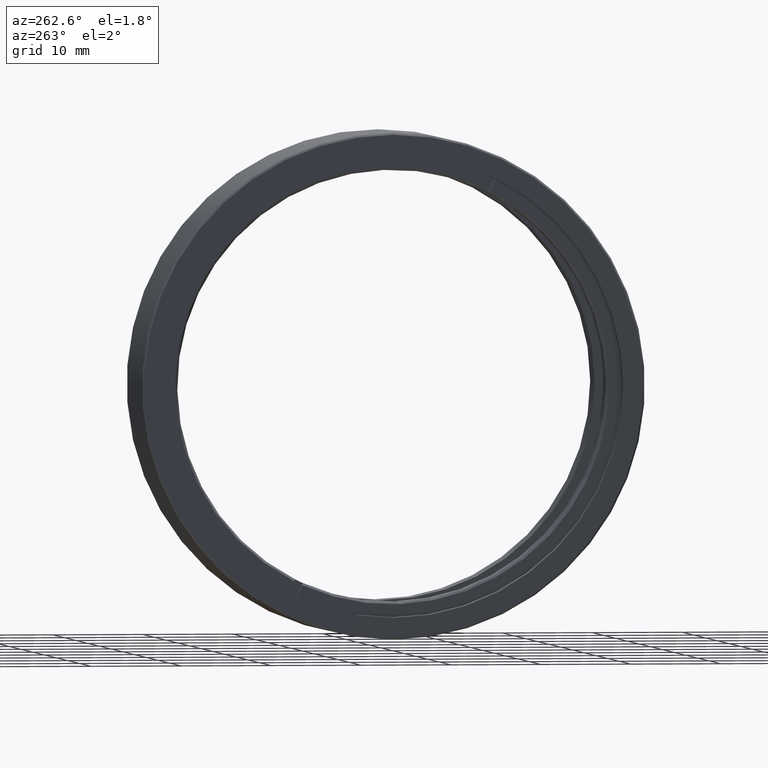
[diagram: clean part render]
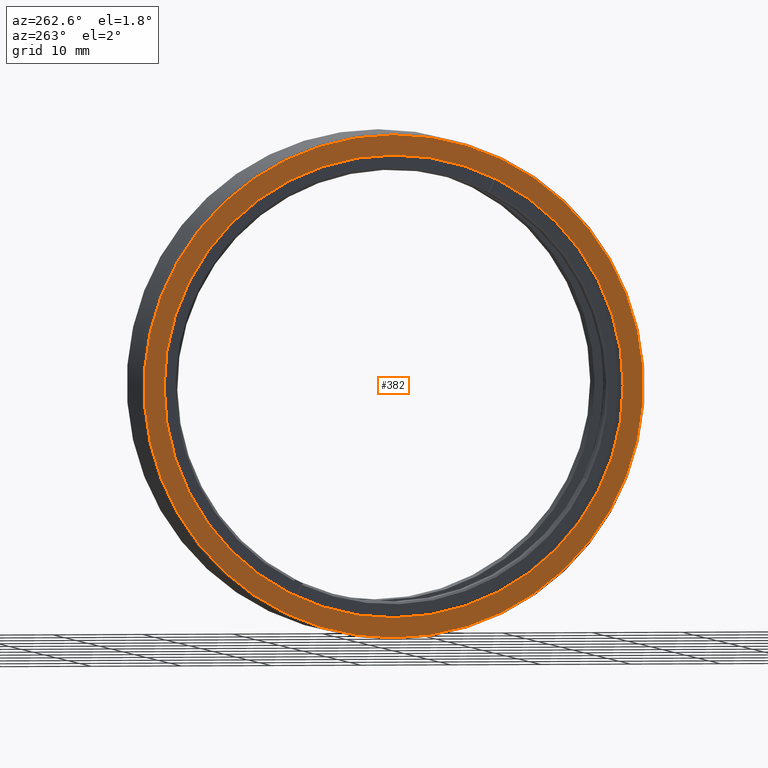
[diagram: same view with one face highlighted and labeled with its STEP entity id]
A machine part, auxiliary view. The second image highlights one B-rep face of the part: STEP entity #382.
In plain terms, the highlighted planar face has unit normal (-1, 0, 0).
Its self-contained STEP definition (entity closure, byte-faithful):
#32 = ORIENTED_EDGE ( 'NONE', *, *, #1016, .T. ) ;
#181 = EDGE_CURVE ( 'NONE', #1378, #1564, #386, .T. ) ;
#236 = CARTESIAN_POINT ( 'NONE',  ( -9.974000000000017963, -20.10857142857141966, 0.000000000000000000 ) ) ;
#287 = VERTEX_POINT ( 'NONE', #307 ) ;
#307 = CARTESIAN_POINT ( 'NONE',  ( -9.974000000000017963, -20.10857142857141611, 25.52499999999999858 ) ) ;
#335 = CIRCLE ( 'NONE', #935, 25.52499999999999858 ) ;
#339 = DIRECTION ( 'NONE',  ( 0.000000000000000000, 0.000000000000000000, 1.000000000000000000 ) ) ;
#382 = ADVANCED_FACE ( 'NONE', ( #757, #1413 ), #602, .T. ) ;
#386 = CIRCLE ( 'NONE', #1367, 27.74999999999999289 ) ;
#415 = CARTESIAN_POINT ( 'NONE',  ( -9.974000000000017963, -20.10857142857141966, -25.52499999999999858 ) ) ;
#506 = ORIENTED_EDGE ( 'NONE', *, *, #181, .T. ) ;
#530 = CARTESIAN_POINT ( 'NONE',  ( -9.974000000000017963, -20.10857142857141966, -27.74999999999999289 ) ) ;
#598 = CARTESIAN_POINT ( 'NONE',  ( -9.974000000000017963, -20.10857142857141966, 0.000000000000000000 ) ) ;
#602 = PLANE ( 'NONE',  #634 ) ;
#634 = AXIS2_PLACEMENT_3D ( 'NONE', #598, #1509, #339 ) ;
#654 = EDGE_CURVE ( 'NONE', #287, #1149, #335, .T. ) ;
#659 = CARTESIAN_POINT ( 'NONE',  ( -9.974000000000017963, -20.10857142857141966, 0.000000000000000000 ) ) ;
#744 = DIRECTION ( 'NONE',  ( -1.000000000000000000, 0.000000000000000000, 0.000000000000000000 ) ) ;
#757 = FACE_OUTER_BOUND ( 'NONE', #1062, .T. ) ;
#761 = ORIENTED_EDGE ( 'NONE', *, *, #654, .F. ) ;
#775 = CIRCLE ( 'NONE', #1120, 25.52499999999999858 ) ;
#788 = EDGE_LOOP ( 'NONE', ( #1424, #761 ) ) ;
#798 = CIRCLE ( 'NONE', #1386, 27.74999999999999289 ) ;
#800 = DIRECTION ( 'NONE',  ( -1.000000000000000000, 0.000000000000000000, 0.000000000000000000 ) ) ;
#875 = DIRECTION ( 'NONE',  ( 0.000000000000000000, 0.000000000000000000, 1.000000000000000000 ) ) ;
#935 = AXIS2_PLACEMENT_3D ( 'NONE', #1579, #1041, #1319 ) ;
#986 = DIRECTION ( 'NONE',  ( -1.000000000000000000, 0.000000000000000000, 0.000000000000000000 ) ) ;
#1005 = CARTESIAN_POINT ( 'NONE',  ( -9.974000000000017963, -20.10857142857141966, 0.000000000000000000 ) ) ;
#1007 = EDGE_CURVE ( 'NONE', #1149, #287, #775, .T. ) ;
#1016 = EDGE_CURVE ( 'NONE', #1564, #1378, #798, .T. ) ;
#1041 = DIRECTION ( 'NONE',  ( -1.000000000000000000, 0.000000000000000000, 0.000000000000000000 ) ) ;
#1050 = DIRECTION ( 'NONE',  ( 0.000000000000000000, 0.000000000000000000, 1.000000000000000000 ) ) ;
#1062 = EDGE_LOOP ( 'NONE', ( #32, #506 ) ) ;
#1120 = AXIS2_PLACEMENT_3D ( 'NONE', #236, #744, #875 ) ;
#1149 = VERTEX_POINT ( 'NONE', #415 ) ;
#1264 = DIRECTION ( 'NONE',  ( 0.000000000000000000, 0.000000000000000000, 1.000000000000000000 ) ) ;
#1319 = DIRECTION ( 'NONE',  ( 0.000000000000000000, 0.000000000000000000, 1.000000000000000000 ) ) ;
#1367 = AXIS2_PLACEMENT_3D ( 'NONE', #659, #800, #1050 ) ;
#1378 = VERTEX_POINT ( 'NONE', #1535 ) ;
#1386 = AXIS2_PLACEMENT_3D ( 'NONE', #1005, #986, #1264 ) ;
#1413 = FACE_BOUND ( 'NONE', #788, .T. ) ;
#1424 = ORIENTED_EDGE ( 'NONE', *, *, #1007, .F. ) ;
#1509 = DIRECTION ( 'NONE',  ( -1.000000000000000000, 0.000000000000000000, 0.000000000000000000 ) ) ;
#1535 = CARTESIAN_POINT ( 'NONE',  ( -9.974000000000017963, -20.10857142857141611, 27.74999999999999289 ) ) ;
#1564 = VERTEX_POINT ( 'NONE', #530 ) ;
#1579 = CARTESIAN_POINT ( 'NONE',  ( -9.974000000000017963, -20.10857142857141966, 0.000000000000000000 ) ) ;